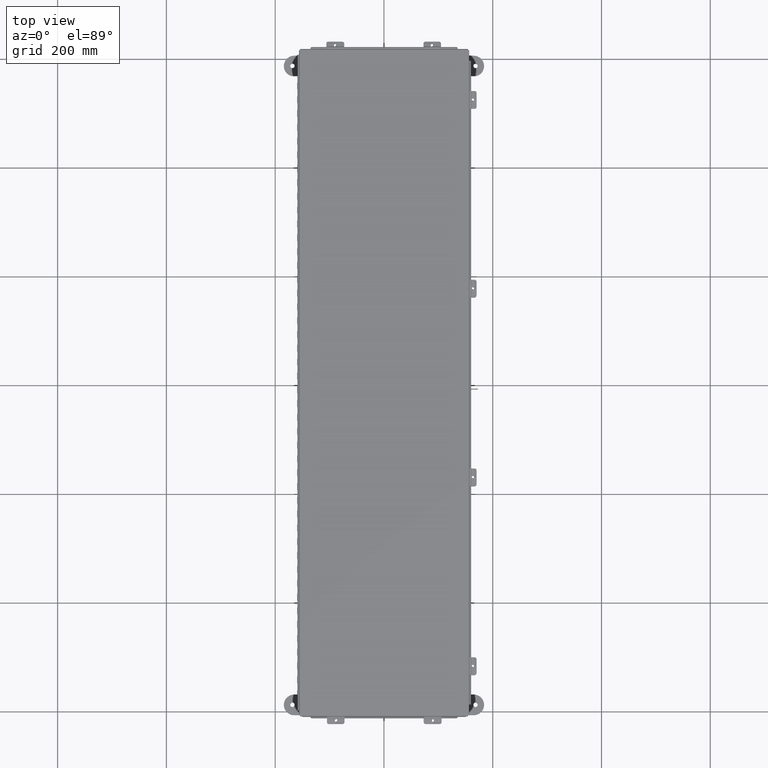
[diagram: clean part render]
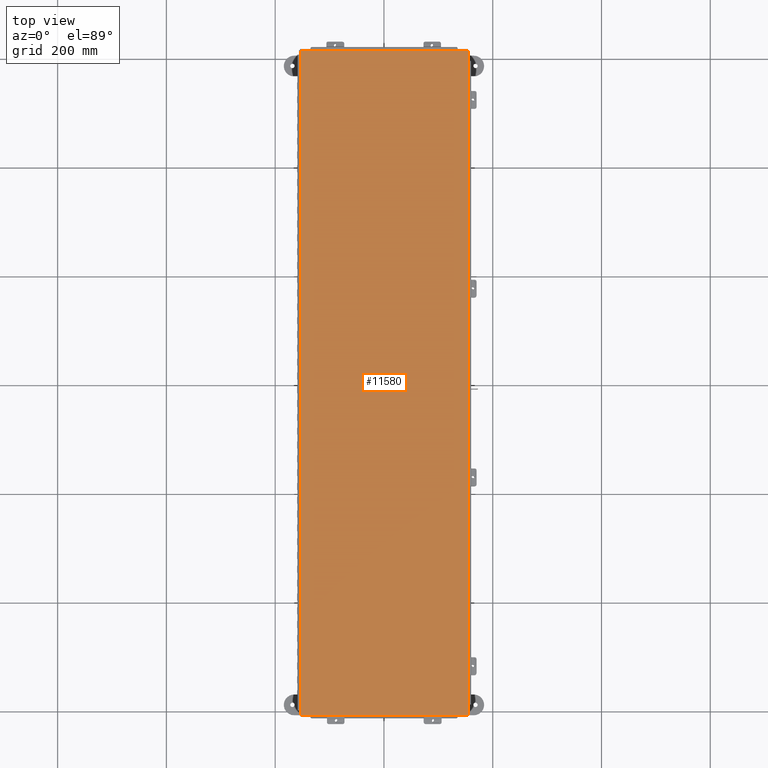
[diagram: same view with one face highlighted and labeled with its STEP entity id]
A machine part, top view. The second image highlights one B-rep face of the part: STEP entity #11580.
In plain terms, the highlighted planar face has unit normal (-0, 0, 1).
Its self-contained STEP definition (entity closure, byte-faithful):
#498 = LINE ( 'NONE', #8930, #29680 ) ;
#694 = VERTEX_POINT ( 'NONE', #829 ) ;
#829 = CARTESIAN_POINT ( 'NONE',  ( 6.068550000000001900, -24.06855000000000500, -0.07470000000000015500 ) ) ;
#1878 = CARTESIAN_POINT ( 'NONE',  ( 0.0000000000000000000, 0.0000000000000000000, -0.07470000000000015500 ) ) ;
#3022 = CARTESIAN_POINT ( 'NONE',  ( 6.074478932188139200, -24.06855000000000500, -0.07470000000000015500 ) ) ;
#4758 = DIRECTION ( 'NONE',  ( 0.0000000000000000000, 0.0000000000000000000, -1.000000000000000000 ) ) ;
#7506 = ORIENTED_EDGE ( 'NONE', *, *, #32053, .T. ) ;
#8157 = ORIENTED_EDGE ( 'NONE', *, *, #9911, .T. ) ;
#8229 = ORIENTED_EDGE ( 'NONE', *, *, #10494, .T. ) ;
#8585 = EDGE_CURVE ( 'NONE', #11342, #694, #8710, .T. ) ;
#8710 = LINE ( 'NONE', #15884, #36497 ) ;
#8930 = CARTESIAN_POINT ( 'NONE',  ( -6.074478932188134700, 24.06855000000000500, -0.07470000000000015500 ) ) ;
#9911 = EDGE_CURVE ( 'NONE', #24995, #11342, #498, .T. ) ;
#10494 = EDGE_CURVE ( 'NONE', #694, #23279, #11984, .T. ) ;
#11342 = VERTEX_POINT ( 'NONE', #34863 ) ;
#11580 = ADVANCED_FACE ( 'NONE', ( #28246 ), #30075, .T. ) ;
#11984 = LINE ( 'NONE', #3022, #17723 ) ;
#13476 = LINE ( 'NONE', #26821, #35177 ) ;
#14067 = CARTESIAN_POINT ( 'NONE',  ( -6.068549999999997400, -24.06855000000000200, -0.07470000000000015500 ) ) ;
#15884 = CARTESIAN_POINT ( 'NONE',  ( 6.068550000000001900, 24.07447893218813600, -0.07470000000000015500 ) ) ;
#17394 = AXIS2_PLACEMENT_3D ( 'NONE', #1878, #4758, #24507 ) ;
#17723 = VECTOR ( 'NONE', #22832, 39.37007874015748100 ) ;
#20602 = ORIENTED_EDGE ( 'NONE', *, *, #8585, .T. ) ;
#22832 = DIRECTION ( 'NONE',  ( -1.000000000000000000, 7.436701470638715300E-033, -0.0000000000000000000 ) ) ;
#23243 = CARTESIAN_POINT ( 'NONE',  ( -6.068549999999997400, 24.06855000000000500, -0.07470000000000015500 ) ) ;
#23279 = VERTEX_POINT ( 'NONE', #14067 ) ;
#24507 = DIRECTION ( 'NONE',  ( -1.000000000000000000, 7.436701470638715300E-033, 0.0000000000000000000 ) ) ;
#24995 = VERTEX_POINT ( 'NONE', #23243 ) ;
#26821 = CARTESIAN_POINT ( 'NONE',  ( -6.068549999999997400, -24.07447893218813600, -0.07470000000000015500 ) ) ;
#28246 = FACE_OUTER_BOUND ( 'NONE', #29235, .T. ) ;
#29235 = EDGE_LOOP ( 'NONE', ( #8157, #20602, #8229, #7506 ) ) ;
#29680 = VECTOR ( 'NONE', #31501, 39.37007874015748100 ) ;
#29780 = DIRECTION ( 'NONE',  ( -7.436701470638715300E-033, 1.000000000000000000, -0.0000000000000000000 ) ) ;
#29941 = DIRECTION ( 'NONE',  ( 7.436701470638715300E-033, -1.000000000000000000, -0.0000000000000000000 ) ) ;
#30075 = PLANE ( 'NONE',  #17394 ) ;
#31501 = DIRECTION ( 'NONE',  ( 1.000000000000000000, -7.436701470638715300E-033, -0.0000000000000000000 ) ) ;
#32053 = EDGE_CURVE ( 'NONE', #23279, #24995, #13476, .T. ) ;
#34863 = CARTESIAN_POINT ( 'NONE',  ( 6.068550000000001900, 24.06855000000000200, -0.07470000000000015500 ) ) ;
#35177 = VECTOR ( 'NONE', #29780, 39.37007874015748100 ) ;
#36497 = VECTOR ( 'NONE', #29941, 39.37007874015748100 ) ;